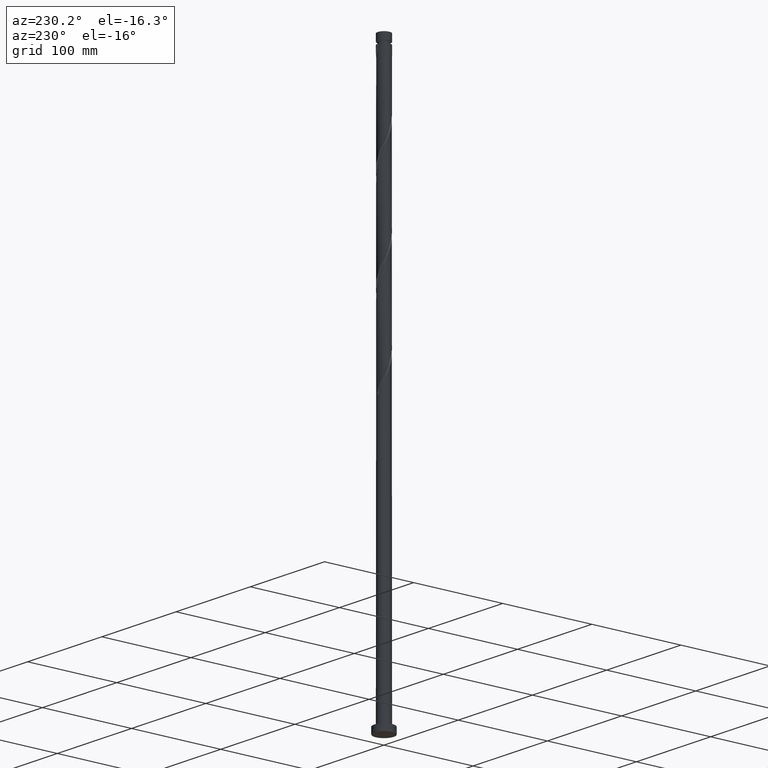
[diagram: clean part render]
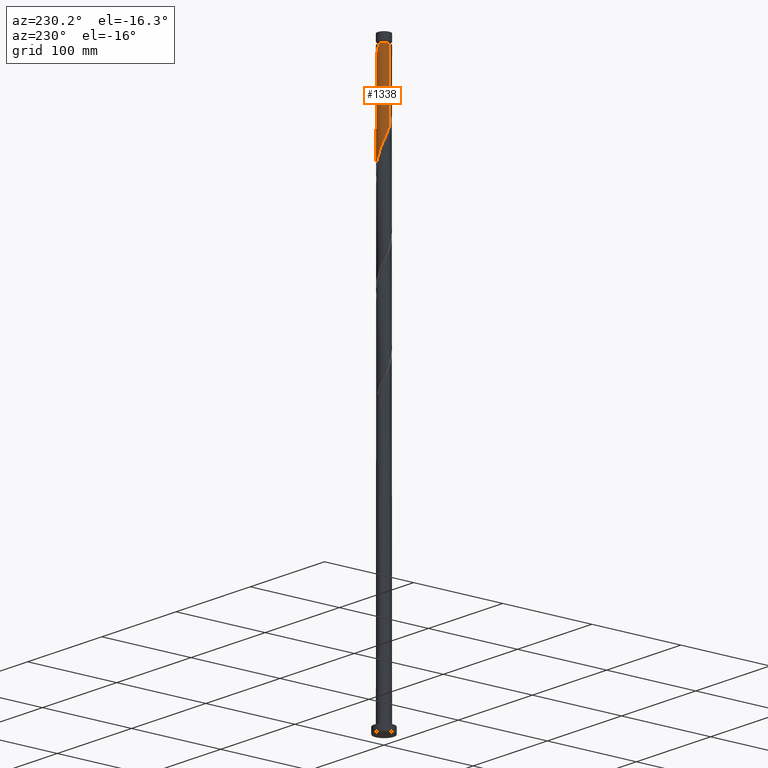
[diagram: same view with one face highlighted and labeled with its STEP entity id]
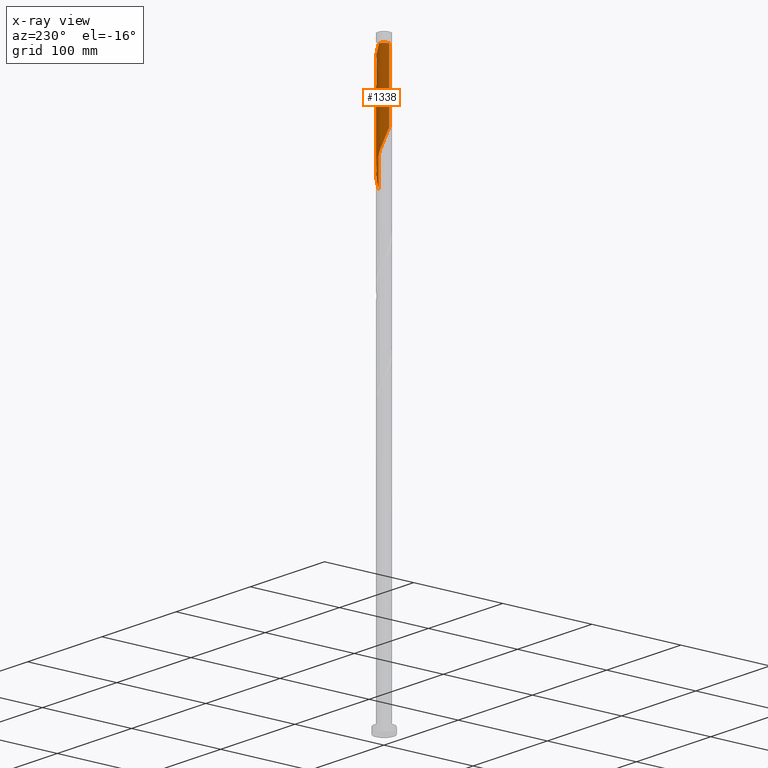
[diagram: x-ray of the same camera — body ghosted, the highlighted face saturated]
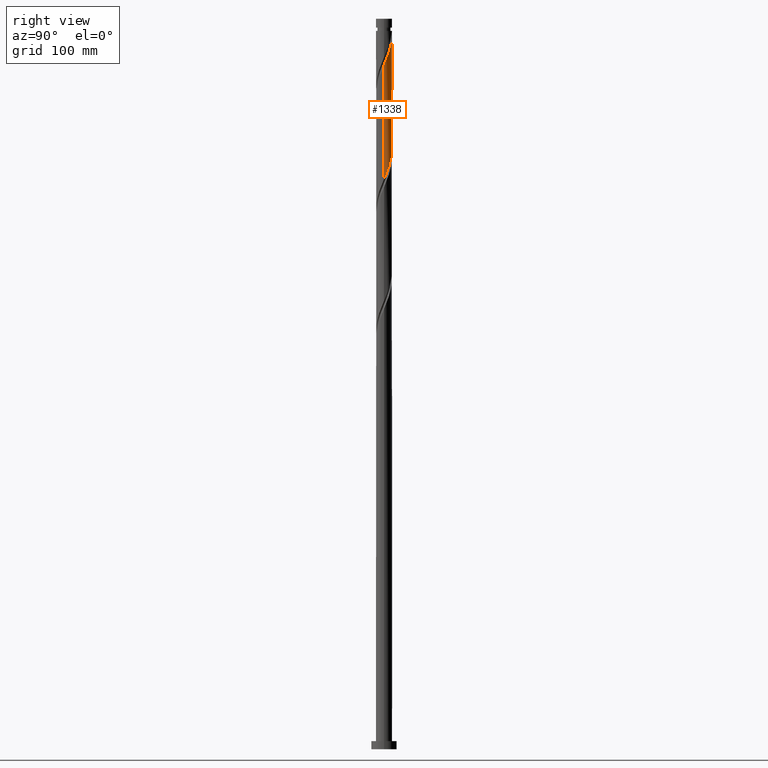
[diagram: same view with one face highlighted and labeled with its STEP entity id]
A machine part, auxiliary view. The second image highlights one B-rep face of the part: STEP entity #1338.
The next image is the same camera in x-ray: the body ghosted, the highlighted face saturated — about 0% of this face is hidden behind the body in this view.
A second angle (right view) of the same face is appended — the face is thin or edge-on in the first view.
In plain terms, the highlighted cylindrical surface (edge-blend (fillet) strip) has radius 7 mm, axis along (-0, -0, -1).
Its self-contained STEP definition (entity closure, byte-faithful):
#1 = DIRECTION ( 'NONE',  ( -0.000000000000000000, -0.000000000000000000, -1.000000000000000000 ) ) ;
#11 = CYLINDRICAL_SURFACE ( 'NONE', #1670, 7.000000000000000000 ) ;
#35 = CARTESIAN_POINT ( 'NONE',  ( -2.426987120929418040, 6.565800295077724336, 523.7657620398250629 ) ) ;
#74 = CARTESIAN_POINT ( 'NONE',  ( 5.519914488767827088, 4.304711841307285347, 600.9716443927661658 ) ) ;
#84 = CARTESIAN_POINT ( 'NONE',  ( -0.1087425470572647851, 6.999155310354217008, 616.4128208633546819 ) ) ;
#141 = VECTOR ( 'NONE', #578, 1000.000000000000000 ) ;
#143 = VECTOR ( 'NONE', #1420, 1000.000000000000000 ) ;
#168 = CARTESIAN_POINT ( 'NONE',  ( 6.979331644137396040, 0.5375219075929518198, 492.8834090986485990 ) ) ;
#184 = VERTEX_POINT ( 'NONE', #2127 ) ;
#192 = CARTESIAN_POINT ( 'NONE',  ( -3.035398116768316168, 6.340906819069959788, 525.3098796868838463 ) ) ;
#222 = CARTESIAN_POINT ( 'NONE',  ( 1.818576125090523465, 6.790693771085499542, 611.7804679221776496 ) ) ;
#244 = CARTESIAN_POINT ( 'NONE',  ( 1.392982411949276189, 6.859999999999998543, 514.5010561574721351 ) ) ;
#246 = CARTESIAN_POINT ( 'NONE',  ( 3.035398116768321941, 6.340906819069966005, 608.6922326280601965 ) ) ;
#250 = EDGE_LOOP ( 'NONE', ( #602, #1354, #1534, #2121, #1010 ) ) ;
#261 = CARTESIAN_POINT ( 'NONE',  ( 3.592125691453331271, 6.008047354740230439, 607.1481149810015268 ) ) ;
#339 = CARTESIAN_POINT ( 'NONE',  ( 6.929522904244864279, 1.184252226071101921, 494.4275267457074392 ) ) ;
#348 = CARTESIAN_POINT ( 'NONE',  ( -5.519914488767819982, 4.304711841307277354, 533.0304679221779907 ) ) ;
#385 = CARTESIAN_POINT ( 'NONE',  ( 5.121024193531053648, 4.816207244780719599, 602.5157620398248355 ) ) ;
#399 = CARTESIAN_POINT ( 'NONE',  ( -6.515027576382760977, 2.641052194558206168, 537.6628208633545682 ) ) ;
#403 = CARTESIAN_POINT ( 'NONE',  ( 2.426987120929425146, 6.565800295077732329, 610.2363502751190936 ) ) ;
#414 = CARTESIAN_POINT ( 'NONE',  ( 1.179200414852475287, 6.899962781175845272, 613.3245855692366604 ) ) ;
#464 = CARTESIAN_POINT ( 'NONE',  ( 5.650978539377437215, 4.131154989527222376, 502.1481149810015268 ) ) ;
#491 = CARTESIAN_POINT ( 'NONE',  ( -7.000000000000000888, 0.3781398857548478598, 543.1953457001534389 ) ) ;
#493 = DIRECTION ( 'NONE',  ( -1.000000000000000000, 0.000000000000000000, 0.000000000000000000 ) ) ;
#512 = CARTESIAN_POINT ( 'NONE',  ( 0.000000000000000000, 0.000000000000000000, 630.0000000000000000 ) ) ;
#542 =( BOUNDED_CURVE ( )  B_SPLINE_CURVE ( 2, ( #1349, #491, #1849, #1379, #1703, #399, #2030, #2079, #348, #1881, #689, #1716, #860, #192, #35, #1048, #1550, #1559, #712, #2065, #244, #1611, #1690, #2151, #1824, #1345, #1494, #2004, #464, #1143, #1828, #996, #1870, #339, #168, #1527, #1359 ),
 .UNSPECIFIED., .F., .T. ) 
 B_SPLINE_CURVE_WITH_KNOTS ( ( 3, 2, 2, 2, 2, 2, 2, 2, 2, 2, 2, 2, 2, 2, 2, 2, 2, 2, 3 ),
 ( 0.4295293573162903833, 0.4338235294117647189, 0.4411764705882352811, 0.4485294117647058987, 0.4558823529411764608, 0.4632352941176470784, 0.4705882352941176405, 0.4779411764705882582, 0.4852941176470588203, 0.4926470588235294379, 0.5000000000000000000, 0.5073529411764705621, 0.5147058823529411242, 0.5220588235294117974, 0.5294117647058823595, 0.5367647058823529216, 0.5441176470588234837, 0.5514705882352941568, 0.5545293573162907164 ),
 .UNSPECIFIED. ) 
 CURVE ( )  GEOMETRIC_REPRESENTATION_ITEM ( )  RATIONAL_B_SPLINE_CURVE ( ( 0.9072066346053070385, 0.9068261157890740165, 0.9090909090909453649, 0.9052128875409765074, 0.9090909090909453649, 0.9052128875409765074, 0.9090909090909453649, 0.9052128875409765074, 0.9090909090909453649, 0.9052128875409765074, 0.9090909090909453649, 0.9052128875409765074, 0.9090909090909453649, 0.9052128875409765074, 0.9090909090909453649, 0.9052128875409765074, 0.9090909090909453649, 0.9052128875409765074, 0.9090909090909453649, 0.9052128875409765074, 0.9090909090909453649, 0.9052128875409765074, 0.9090909090909453649, 0.9052128875409765074, 0.9090909090909453649, 0.9052128875409765074, 0.9090909090909453649, 0.9052128875409765074, 0.9090909090909453649, 0.9052128875409765074, 0.9090909090909453649, 0.9052128875409765074, 0.9090909090909453649, 0.9052128875409765074, 0.9090909090909453649, 0.9074776808428475228, 0.9072066346053069275 ) ) 
 REPRESENTATION_ITEM ( '' )  );
#578 = DIRECTION ( 'NONE',  ( -0.000000000000000000, -0.000000000000000000, -1.000000000000000000 ) ) ;
#602 = ORIENTED_EDGE ( 'NONE', *, *, #909, .F. ) ;
#653 = FACE_OUTER_BOUND ( 'NONE', #250, .T. ) ;
#669 = CARTESIAN_POINT ( 'NONE',  ( 7.000000000000008882, 1.732894238353902554E-15, 589.9028473827778498 ) ) ;
#685 = VERTEX_POINT ( 'NONE', #826 ) ;
#689 = CARTESIAN_POINT ( 'NONE',  ( -4.634938729834690463, 5.245697567595597022, 529.9422326280603102 ) ) ;
#709 = EDGE_CURVE ( 'NONE', #1735, #184, #542, .T. ) ;
#712 = CARTESIAN_POINT ( 'NONE',  ( 0.1087425470572637026, 6.999155310354205461, 517.5892914515897019 ) ) ;
#720 = VERTEX_POINT ( 'NONE', #669 ) ;
#736 = CARTESIAN_POINT ( 'NONE',  ( -7.000000000000000000, 1.942036646431110937E-15, 544.0992649321663066 ) ) ;
#752 = CARTESIAN_POINT ( 'NONE',  ( 6.216916180193686969, 3.217134316196026855, 597.8834090986484853 ) ) ;
#762 = CARTESIAN_POINT ( 'NONE',  ( -6.999999999999936939, 0.000000000000000000, 619.5010561574721351 ) ) ;
#826 = CARTESIAN_POINT ( 'NONE',  ( -1.392982411949273525, 6.860000000000009202, 619.5010561574721351 ) ) ;
#839 = DIRECTION ( 'NONE',  ( -1.000000000000000000, 0.000000000000000000, 0.000000000000000000 ) ) ;
#860 = CARTESIAN_POINT ( 'NONE',  ( -3.592125691453326830, 6.008047354740221557, 526.8539973339426297 ) ) ;
#909 = EDGE_CURVE ( 'NONE', #720, #685, #1076, .T. ) ;
#914 = LINE ( 'NONE', #1587, #141 ) ;
#925 = CARTESIAN_POINT ( 'NONE',  ( 7.000000000000012434, 0.3781398857548365910, 590.8067666147906039 ) ) ;
#937 = CARTESIAN_POINT ( 'NONE',  ( 0.5398247046144263317, 7.009231791266186562, 614.8687032162953301 ) ) ;
#996 = CARTESIAN_POINT ( 'NONE',  ( 6.593928833002400403, 2.437384573822548806, 497.5157620398251197 ) ) ;
#1010 = ORIENTED_EDGE ( 'NONE', *, *, #1438, .T. ) ;
#1037 = EDGE_CURVE ( 'NONE', #1216, #1735, #914, .T. ) ;
#1048 = CARTESIAN_POINT ( 'NONE',  ( -1.818576125090521911, 6.790693771085488883, 522.2216443927662795 ) ) ;
#1076 =( BOUNDED_CURVE ( )  B_SPLINE_CURVE ( 2, ( #1939, #925, #1778, #1767, #1251, #2084, #752, #1906, #74, #385, #1434, #1929, #261, #246, #403, #222, #414, #937, #84, #1080, #1385 ),
 .UNSPECIFIED., .F., .T. ) 
 B_SPLINE_CURVE_WITH_KNOTS ( ( 3, 2, 2, 2, 2, 2, 2, 2, 2, 2, 3 ),
 ( 0.6795293573162902723, 0.6838235294117647189, 0.6911764705882352811, 0.6985294117647059542, 0.7058823529411765163, 0.7132352941176471894, 0.7205882352941178626, 0.7279411764705885357, 0.7352941176470590978, 0.7426470588235297710, 0.7500000000000003331 ),
 .UNSPECIFIED. ) 
 CURVE ( )  GEOMETRIC_REPRESENTATION_ITEM ( )  RATIONAL_B_SPLINE_CURVE ( ( 0.9072066346053130337, 0.9068261157890800117, 0.9090909090909514711, 0.9052128875409826136, 0.9090909090909514711, 0.9052128875409826136, 0.9090909090909514711, 0.9052128875409826136, 0.9090909090909514711, 0.9052128875409826136, 0.9090909090909514711, 0.9052128875409826136, 0.9090909090909514711, 0.9052128875409826136, 0.9090909090909514711, 0.9052128875409826136, 0.9090909090909514711, 0.9052128875409826136, 0.9090909090909514711, 0.9052128875409823916, 0.9090909090909516932 ) ) 
 REPRESENTATION_ITEM ( '' )  );
#1080 = CARTESIAN_POINT ( 'NONE',  ( -0.7573097987289800770, 6.989078829442247454, 617.9569385104132380 ) ) ;
#1143 = CARTESIAN_POINT ( 'NONE',  ( 6.033786423897981699, 3.607514713233049619, 500.6039973339428002 ) ) ;
#1216 = VERTEX_POINT ( 'NONE', #762 ) ;
#1251 = CARTESIAN_POINT ( 'NONE',  ( 6.702208247472153602, 2.020001140474031676, 594.7951738045309185 ) ) ;
#1338 = ADVANCED_FACE ( 'NONE', ( #653 ), #11, .T. ) ;
#1345 = CARTESIAN_POINT ( 'NONE',  ( 4.323153652638912270, 5.543562348443765941, 506.7804679221779907 ) ) ;
#1349 = CARTESIAN_POINT ( 'NONE',  ( -7.000000000000000000, 1.942036646431110937E-15, 544.0992649321663066 ) ) ;
#1354 = ORIENTED_EDGE ( 'NONE', *, *, #1799, .T. ) ;
#1359 = CARTESIAN_POINT ( 'NONE',  ( 6.999999999999998224, -6.244394755447724730E-15, 491.5992649321660792 ) ) ;
#1379 = CARTESIAN_POINT ( 'NONE',  ( -6.889388918561525799, 1.398950086389860292, 540.7510561574722487 ) ) ;
#1385 = CARTESIAN_POINT ( 'NONE',  ( -1.392982411949273525, 6.860000000000010090, 619.5010561574721351 ) ) ;
#1420 = DIRECTION ( 'NONE',  ( -0.000000000000000000, -0.000000000000000000, -1.000000000000000000 ) ) ;
#1434 = CARTESIAN_POINT ( 'NONE',  ( 4.634938729834701121, 5.245697567595602351, 604.0598796868839599 ) ) ;
#1438 = EDGE_CURVE ( 'NONE', #1216, #685, #1560, .T. ) ;
#1494 = CARTESIAN_POINT ( 'NONE',  ( 4.795662153747904277, 5.099178807132576097, 505.2363502751191504 ) ) ;
#1527 = CARTESIAN_POINT ( 'NONE',  ( 7.000000000000001776, 0.2691583152137549950, 492.2426706842259705 ) ) ;
#1534 = ORIENTED_EDGE ( 'NONE', *, *, #709, .F. ) ;
#1550 = CARTESIAN_POINT ( 'NONE',  ( -1.179200414852471956, 6.899962781175834614, 520.6775267457073824 ) ) ;
#1559 = CARTESIAN_POINT ( 'NONE',  ( -0.5398247046144223349, 7.009231791266177680, 519.1334090986485990 ) ) ;
#1560 = CIRCLE ( 'NONE', #1845, 6.999999999999936939 ) ;
#1587 = CARTESIAN_POINT ( 'NONE',  ( -7.000000000000000000, 0.000000000000000000, 630.0000000000000000 ) ) ;
#1611 = CARTESIAN_POINT ( 'NONE',  ( 2.028655025169599391, 6.730921170557762956, 512.9569385104132380 ) ) ;
#1670 = AXIS2_PLACEMENT_3D ( 'NONE', #512, #1, #839 ) ;
#1690 = CARTESIAN_POINT ( 'NONE',  ( 2.629785931500606466, 6.487235617308922286, 511.4128208633545114 ) ) ;
#1703 = CARTESIAN_POINT ( 'NONE',  ( -6.702208247472142055, 2.020001140474032564, 539.2069385104132380 ) ) ;
#1716 = CARTESIAN_POINT ( 'NONE',  ( -4.148853266138337048, 5.675187890410485103, 528.3981149810014131 ) ) ;
#1735 = VERTEX_POINT ( 'NONE', #736 ) ;
#1767 = CARTESIAN_POINT ( 'NONE',  ( 6.889388918561535569, 1.398950086389859182, 593.2510561574719077 ) ) ;
#1778 = CARTESIAN_POINT ( 'NONE',  ( 6.959264651295738346, 0.7540792486375301751, 591.7069385104132380 ) ) ;
#1799 = EDGE_CURVE ( 'NONE', #720, #184, #2067, .T. ) ;
#1824 = CARTESIAN_POINT ( 'NONE',  ( 3.777035245235266014, 5.893556206251924223, 508.3245855692367741 ) ) ;
#1828 = CARTESIAN_POINT ( 'NONE',  ( 6.313857628450193715, 3.022449643527795438, 499.0598796868838463 ) ) ;
#1845 = AXIS2_PLACEMENT_3D ( 'NONE', #2020, #1858, #493 ) ;
#1849 = CARTESIAN_POINT ( 'NONE',  ( -6.959264651295729465, 0.7540792486375302861, 542.2951738045310321 ) ) ;
#1858 = DIRECTION ( 'NONE',  ( -0.000000000000000000, -0.000000000000000000, -1.000000000000000000 ) ) ;
#1870 = CARTESIAN_POINT ( 'NONE',  ( 6.761725868623631897, 1.810818399946827917, 495.9716443927662226 ) ) ;
#1881 = CARTESIAN_POINT ( 'NONE',  ( -5.121024193531046542, 4.816207244780714269, 531.4863502751190936 ) ) ;
#1906 = CARTESIAN_POINT ( 'NONE',  ( 5.918804784004604969, 3.793216437833843102, 599.4275267457071550 ) ) ;
#1915 = CARTESIAN_POINT ( 'NONE',  ( 7.000000000000000000, 8.572527594031473190E-16, 630.0000000000000000 ) ) ;
#1929 = CARTESIAN_POINT ( 'NONE',  ( 4.148853266138341489, 5.675187890410493097, 605.6039973339426297 ) ) ;
#1939 = CARTESIAN_POINT ( 'NONE',  ( 7.000000000000008882, 1.732894238353902554E-15, 589.9028473827778498 ) ) ;
#2004 = CARTESIAN_POINT ( 'NONE',  ( 5.268170654856889179, 4.654795265821392469, 503.6922326280603102 ) ) ;
#2020 = CARTESIAN_POINT ( 'NONE',  ( 0.000000000000000000, 0.000000000000000000, 619.5010561574721351 ) ) ;
#2030 = CARTESIAN_POINT ( 'NONE',  ( -6.216916180193678088, 3.217134316196022858, 536.1187032162956712 ) ) ;
#2065 = CARTESIAN_POINT ( 'NONE',  ( 0.7573097987289503230, 6.989078829442237684, 516.0451738045308048 ) ) ;
#2067 = LINE ( 'NONE', #1915, #143 ) ;
#2079 = CARTESIAN_POINT ( 'NONE',  ( -5.918804784004594310, 3.793216437833842214, 534.5745855692368877 ) ) ;
#2084 = CARTESIAN_POINT ( 'NONE',  ( 6.515027576382768970, 2.641052194558210164, 596.3392914515894745 ) ) ;
#2121 = ORIENTED_EDGE ( 'NONE', *, *, #1037, .F. ) ;
#2127 = CARTESIAN_POINT ( 'NONE',  ( 6.999999999999998224, -6.244394755447724730E-15, 491.5992649321660792 ) ) ;
#2151 = CARTESIAN_POINT ( 'NONE',  ( 3.230916837831619315, 6.243550064060082505, 509.8687032162957280 ) ) ;